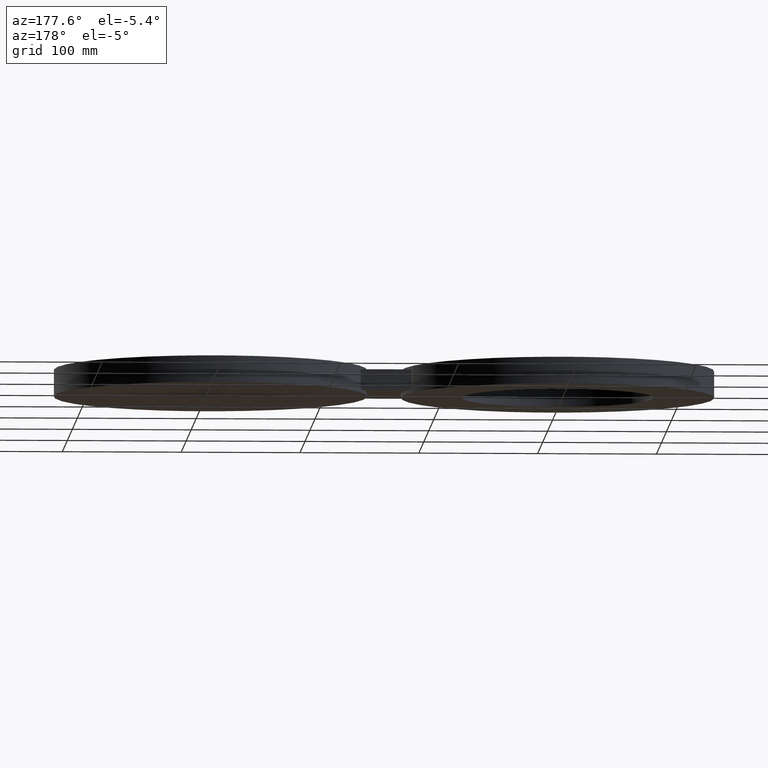
[diagram: clean part render]
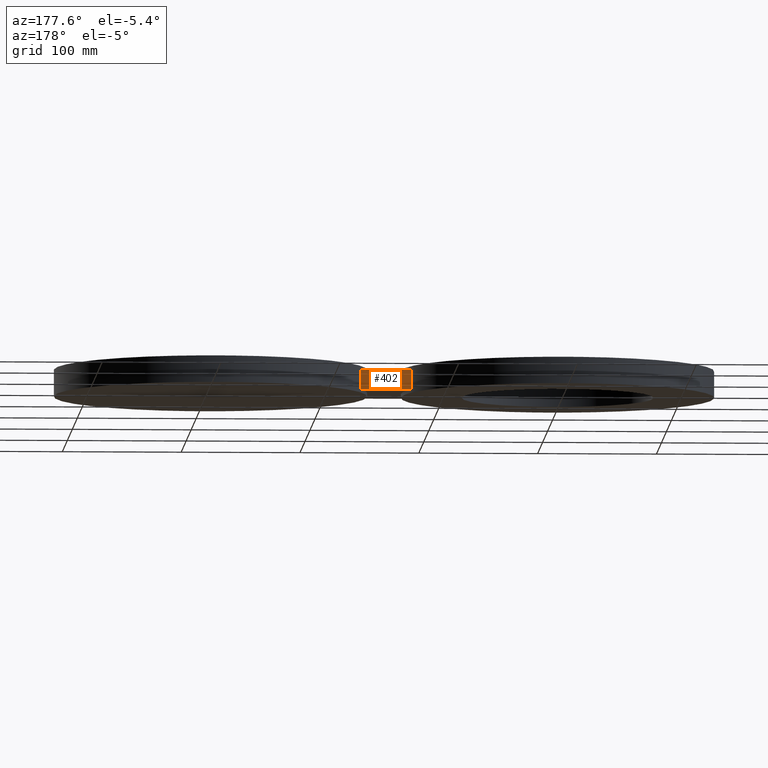
[diagram: same view with one face highlighted and labeled with its STEP entity id]
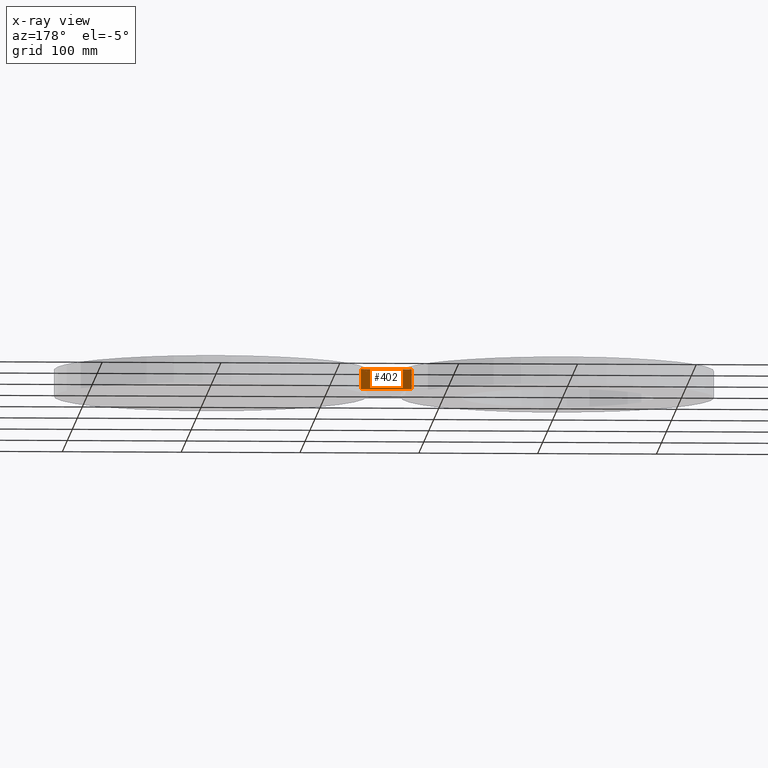
[diagram: x-ray of the same camera — body ghosted, the highlighted face saturated]
A machine part, auxiliary view. The second image highlights one B-rep face of the part: STEP entity #402.
The next image is the same camera in x-ray: the body ghosted, the highlighted face saturated — about 0% of this face is hidden behind the body in this view.
In plain terms, the highlighted planar face has unit normal (0, 1, -0).
Its self-contained STEP definition (entity closure, byte-faithful):
#389=AXIS2_PLACEMENT_3D('Plane Axis2P3D',#386,#387,#388) ;
#157=CARTESIAN_POINT('Vertex',(4.90713765857,1.69000000001,0.330000000001)) ;
#160=CARTESIAN_POINT('Line Origine',(4.90713765857,1.69000000001,0.)) ;
#164=CARTESIAN_POINT('Vertex',(4.90713765857,1.69000000001,-0.330000000001)) ;
#320=CARTESIAN_POINT('Vertex',(6.59286234147,1.69000000001,-0.330000000001)) ;
#323=CARTESIAN_POINT('Line Origine',(6.59286234147,1.69000000001,0.)) ;
#327=CARTESIAN_POINT('Vertex',(6.59286234147,1.69000000001,0.330000000001)) ;
#372=CARTESIAN_POINT('Line Origine',(5.75000000002,1.69000000001,-0.330000000001)) ;
#386=CARTESIAN_POINT('Axis2P3D Location',(6.59286234147,1.69000000001,0.)) ;
#391=CARTESIAN_POINT('Line Origine',(5.75000000002,1.69000000001,0.330000000001)) ;
#161=DIRECTION('Vector Direction',(0.,0.,0.0393700787402)) ;
#324=DIRECTION('Vector Direction',(0.,0.,0.0393700787402)) ;
#373=DIRECTION('Vector Direction',(-0.0393700787402,0.,0.)) ;
#387=DIRECTION('Axis2P3D Direction',(0.,0.0393700787402,-0.)) ;
#388=DIRECTION('Axis2P3D XDirection',(-0.0393700787402,0.,0.)) ;
#392=DIRECTION('Vector Direction',(-0.0393700787402,0.,0.)) ;
#162=VECTOR('Line Direction',#161,0.0393700787402) ;
#325=VECTOR('Line Direction',#324,0.0393700787402) ;
#374=VECTOR('Line Direction',#373,0.0393700787402) ;
#393=VECTOR('Line Direction',#392,0.0393700787402) ;
#397=ORIENTED_EDGE('',*,*,#329,.F.) ;
#398=ORIENTED_EDGE('',*,*,#376,.T.) ;
#399=ORIENTED_EDGE('',*,*,#166,.T.) ;
#400=ORIENTED_EDGE('',*,*,#395,.F.) ;
#402=ADVANCED_FACE('PartBody',(#401),#390,.T.) ;
#166=EDGE_CURVE('',#165,#158,#163,.T.) ;
#329=EDGE_CURVE('',#321,#328,#326,.T.) ;
#376=EDGE_CURVE('',#321,#165,#375,.T.) ;
#395=EDGE_CURVE('',#328,#158,#394,.T.) ;
#396=EDGE_LOOP('',(#397,#398,#399,#400)) ;
#401=FACE_OUTER_BOUND('',#396,.T.) ;
#163=LINE('Line',#160,#162) ;
#326=LINE('Line',#323,#325) ;
#375=LINE('Line',#372,#374) ;
#394=LINE('Line',#391,#393) ;
#390=PLANE('',#389) ;
#158=VERTEX_POINT('',#157) ;
#165=VERTEX_POINT('',#164) ;
#321=VERTEX_POINT('',#320) ;
#328=VERTEX_POINT('',#327) ;